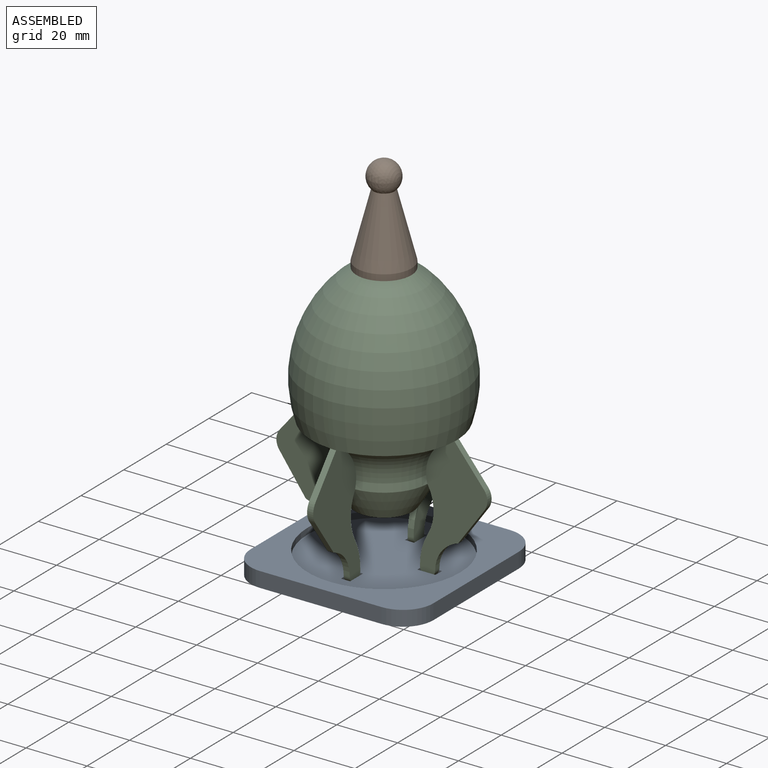
[diagram: assembled view]
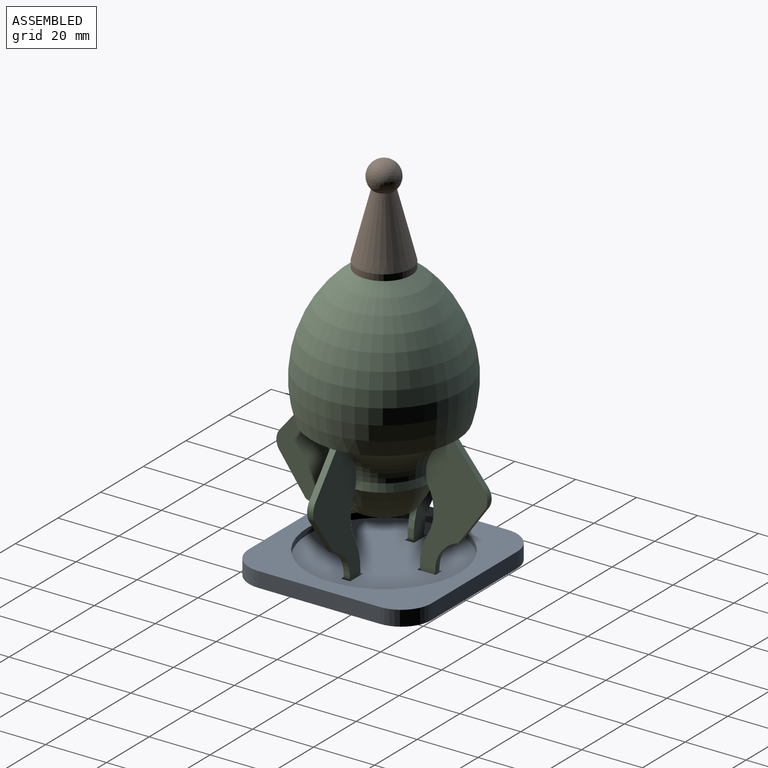
[diagram: assembled view, second angle]
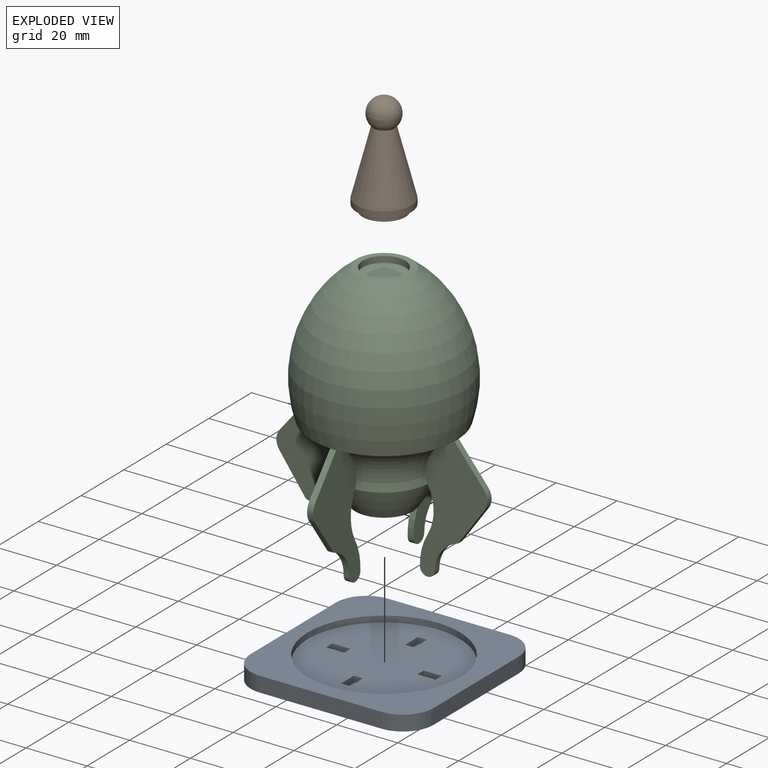
[diagram: exploded view]
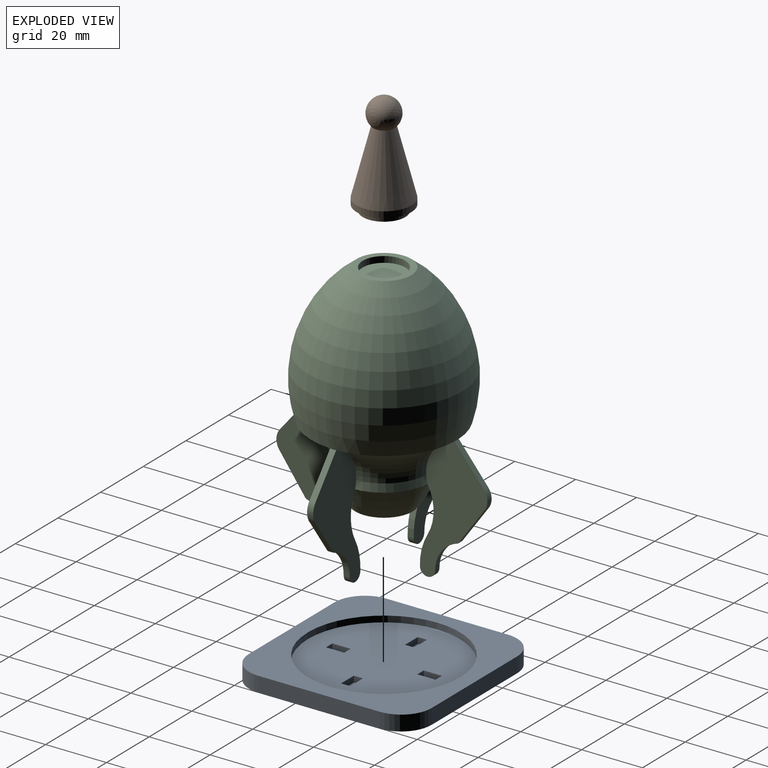
[diagram: exploded view, second angle]
ASSEMBLY  parts=3 mates=2
PART A: 32 faces, bbox 60x60x5 mm
  f0: plane 50x50mm, normal (0,0,1), area 1891.5mm2, adj f7,f12,f13,f14,f15,f17,f18,f19
  f1: plane 40x5mm, normal (1,0,0), area 200mm2, adj f5,f6,f8,f11
  f2: plane 40x5mm, normal (0,1,0), area 200mm2, adj f5,f6,f8,f9
  f3: plane 40x5mm, normal (-1,0,0), area 200mm2, adj f5,f6,f9,f10
  f4: plane 40x5mm, normal (0,-1,0), area 200mm2, adj f5,f6,f10,f11
  f5: plane 60x60mm, normal (0,0,1), area 1550.7mm2, adj f1,f2,f3,f4,f7,f8,f9,f10
  f6: plane 60x60mm, normal (0,0,-1), area 3514.2mm2, adj f1,f2,f3,f4,f8,f9,f10,f11
  f7: cylinder r=25mm len=50mm, axis (0,0,1), area 314.2mm2, adj f0,f5
  f8: cylinder r=10mm len=10mm, axis (0,0,-1), area 78.5mm2, adj f1,f2,f5,f6
  f9: cylinder r=10mm len=10mm, axis (0,0,1), area 78.5mm2, adj f2,f3,f5,f6
  f10: cylinder r=10mm len=10mm, axis (0,0,-1), area 78.5mm2, adj f3,f4,f5,f6
  f11: cylinder r=10mm len=10mm, axis (0,0,1), area 78.5mm2, adj f1,f4,f5,f6
  f12: plane 3x2mm, normal (0,1,0), area 6mm2, adj f0,f13,f15,f16
  f13: plane 6x2mm, normal (-1,0,0), area 12mm2, adj f0,f12,f14,f16
  f14: plane 3x2mm, normal (0,-1,0), area 6mm2, adj f0,f13,f15,f16
  f15: plane 6x2mm, normal (1,0,0), area 12mm2, adj f0,f12,f14,f16
  f16: plane 6x3mm, normal (0,0,1), area 18mm2, adj f12,f13,f14,f15
  f17: plane 3x2mm, normal (1,0,0), area 6mm2, adj f0,f18,f20,f21
  f18: plane 6x2mm, normal (0,1,0), area 12mm2, adj f0,f17,f19,f21
  f19: plane 3x2mm, normal (-1,0,0), area 6mm2, adj f0,f18,f20,f21
  f20: plane 6x2mm, normal (0,-1,0), area 12mm2, adj f0,f17,f19,f21
  f21: plane 6x3mm, normal (0,0,1), area 18mm2, adj f17,f18,f19,f20
  f22: plane 6x2mm, normal (1,0,0), area 12mm2, adj f0,f23,f25,f26
  f23: plane 3x2mm, normal (0,1,0), area 6mm2, adj f0,f22,f24,f26
  f24: plane 6x2mm, normal (-1,0,0), area 12mm2, adj f0,f23,f25,f26
  f25: plane 3x2mm, normal (0,-1,0), area 6mm2, adj f0,f22,f24,f26
  f26: plane 6x3mm, normal (0,0,1), area 18mm2, adj f22,f23,f24,f25
  f27: plane 3x2mm, normal (-1,0,0), area 6mm2, adj f0,f28,f30,f31
  f28: plane 6x2mm, normal (0,-1,0), area 12mm2, adj f0,f27,f29,f31
  f29: plane 3x2mm, normal (1,0,0), area 6mm2, adj f0,f28,f30,f31
  f30: plane 6x2mm, normal (0,1,0), area 12mm2, adj f0,f27,f29,f31
  f31: plane 6x3mm, normal (0,0,1), area 18mm2, adj f27,f28,f29,f30
PART B: 6 faces, bbox 18x18x34 mm
  f0: cylinder r=7mm len=14mm, axis (0,0,-1), area 88mm2, adj f1,f3
  f1: plane 14x14mm, normal (0,0,-1), area 153.9mm2, adj f0
  f2: cylinder r=9mm len=18mm, axis (0,0,-1), area 113.1mm2, adj f3,f4
  f3: plane 18x18mm, normal (0,0,-1), area 100.5mm2, adj f0,f2
  f4: cone r=9mm half-angle=14.6deg, axis (0,0,-1), area 863.3mm2, adj f2,f5
  f5: sphere r=5mm, area 271mm2, adj f4
PART C: 58 faces, bbox 69.3x69.3x87.5 mm
  f0: plane 2x0.02mm, normal (0,-0.86,-0.51), area 0mm2, adj f46,f47,f48,f49,f50
  f1: torus R=26.54mm, axis (0,0,-1), area 491.5mm2, adj f7,f9,f14,f48
  f2: plane 2x0.02mm, normal (0.86,0,-0.51), area 0mm2, adj f35,f36,f37,f38,f39
  f3: torus R=26.54mm, axis (0,0,-1), area 491.5mm2, adj f7,f9,f37,f47
  f4: plane 2x0.02mm, normal (0,0.86,-0.51), area 0mm2, adj f24,f25,f26,f27,f28
  f5: torus R=26.54mm, axis (0,0,-1), area 491.5mm2, adj f7,f9,f26,f36
  f6: plane 2x0.02mm, normal (-0.86,0,-0.51), area 0mm2, adj f13,f14,f15,f16,f17
  f7: revolved ~29.93x29.93mm, area 894.1mm2, adj f1,f3,f5,f8,f19,f30,f41,f52
  f8: torus R=26.54mm, axis (0,0,-1), area 491.5mm2, adj f7,f9,f15,f25
  f9: revolved ~51.69x51.69mm, area 6797.7mm2, adj f1,f3,f5,f8,f10,f13,f16,f24
  f10: plane 18x18mm, normal (0,0,1), area 100.5mm2, adj f9,f11
  f11: cylinder r=7mm len=14mm, axis (0,0,-1), area 88mm2, adj f10,f12
  f12: plane 14x14mm, normal (0,0,1), area 153.9mm2, adj f11
  f13: plane 1x0.02mm, normal (0,0,1), area 0mm2, adj f6,f9,f14
  f14: plane 42.5x22.15mm, normal (0,-1,0), area 483.8mm2, adj f1,f6,f13,f17,f18,f19,f20,f21
  f15: plane 42.5x22.15mm, normal (0,1,0), area 483.8mm2, adj f6,f8,f16,f17,f18,f19,f20,f21
  f16: plane 1x0.02mm, normal (0,0,1), area 0mm2, adj f6,f9,f15
  f17: plane 11.74x9.64mm, normal (-0.77,0,0.63), area 30.4mm2, adj f6,f14,f15,f20
  f18: cylinder r=18.89mm len=10mm, axis (0,1,0), area 20.9mm2, adj f14,f15,f19,f23
  f19: cylinder r=15mm len=15mm, axis (0,1,0), area 31.4mm2, adj f7,f14,f15,f18
  f20: cylinder r=5mm len=6.08mm, axis (0,1,0), area 13.1mm2, adj f14,f15,f17,f21
  f21: plane 12.16x8.71mm, normal (-0.81,0,-0.58), area 29.9mm2, adj f14,f15,f20,f22
  f22: cylinder r=10.42mm len=10mm, axis (0,1,0), area 26.8mm2, adj f14,f15,f21,f23
  f23: cylinder r=2.5mm len=5mm, axis (0,1,0), area 15.7mm2, adj f14,f15,f18,f22
  f24: plane 1x0.02mm, normal (0,0,1), area 0mm2, adj f4,f9,f26
  f25: plane 42.5x22.15mm, normal (-1,0,0), area 483.8mm2, adj f4,f8,f27,f28,f29,f30,f31,f32
  f26: plane 42.5x22.15mm, normal (1,0,0), area 483.8mm2, adj f4,f5,f24,f28,f29,f30,f31,f32
  f27: plane 1x0.02mm, normal (0,0,1), area 0mm2, adj f4,f9,f25
  f28: plane 11.74x9.64mm, normal (0,0.77,0.63), area 30.4mm2, adj f4,f25,f26,f31
  f29: cylinder r=18.89mm len=10mm, axis (1,0,0), area 20.9mm2, adj f25,f26,f30,f34
  f30: cylinder r=15mm len=15mm, axis (1,0,0), area 31.4mm2, adj f7,f25,f26,f29
  f31: cylinder r=5mm len=6.08mm, axis (1,0,0), area 13.1mm2, adj f25,f26,f28,f32
  f32: plane 12.16x8.71mm, normal (0,0.81,-0.58), area 29.9mm2, adj f25,f26,f31,f33
  f33: cylinder r=10.42mm len=10mm, axis (1,0,0), area 26.8mm2, adj f25,f26,f32,f34
  f34: cylinder r=2.5mm len=5mm, axis (1,0,0), area 15.7mm2, adj f25,f26,f29,f33
  f35: plane 1x0.02mm, normal (0,0,1), area 0mm2, adj f2,f9,f37
  f36: plane 42.5x22.15mm, normal (0,1,0), area 483.8mm2, adj f2,f5,f38,f39,f40,f41,f42,f43
  f37: plane 42.5x22.15mm, normal (0,-1,0), area 483.8mm2, adj f2,f3,f35,f39,f40,f41,f42,f43
  f38: plane 1x0.02mm, normal (0,0,1), area 0mm2, adj f2,f9,f36
  f39: plane 11.74x9.64mm, normal (0.77,0,0.63), area 30.4mm2, adj f2,f36,f37,f42
  f40: cylinder r=18.89mm len=10mm, axis (0,-1,0), area 20.9mm2, adj f36,f37,f41,f45
  f41: cylinder r=15mm len=15mm, axis (0,-1,0), area 31.4mm2, adj f7,f36,f37,f40
  f42: cylinder r=5mm len=6.08mm, axis (0,-1,0), area 13.1mm2, adj f36,f37,f39,f43
  f43: plane 12.16x8.71mm, normal (0.81,0,-0.58), area 29.9mm2, adj f36,f37,f42,f44
  f44: cylinder r=10.42mm len=10mm, axis (0,-1,0), area 26.8mm2, adj f36,f37,f43,f45
  f45: cylinder r=2.5mm len=5mm, axis (0,-1,0), area 15.7mm2, adj f36,f37,f40,f44
  f46: plane 1x0.02mm, normal (0,0,1), area 0mm2, adj f0,f9,f48
  f47: plane 42.5x22.15mm, normal (1,0,0), area 483.8mm2, adj f0,f3,f49,f50,f51,f52,f53,f54
  f48: plane 42.5x22.15mm, normal (-1,0,0), area 483.8mm2, adj f0,f1,f46,f50,f51,f52,f53,f54
  f49: plane 1x0.02mm, normal (0,0,1), area 0mm2, adj f0,f9,f47
  f50: plane 11.74x9.64mm, normal (0,-0.77,0.63), area 30.4mm2, adj f0,f47,f48,f53
  f51: cylinder r=18.89mm len=10mm, axis (-1,0,0), area 20.9mm2, adj f47,f48,f52,f56
  f52: cylinder r=15mm len=15mm, axis (-1,0,0), area 31.4mm2, adj f7,f47,f48,f51
  f53: cylinder r=5mm len=6.08mm, axis (-1,0,0), area 13.1mm2, adj f47,f48,f50,f54
  f54: plane 12.16x8.71mm, normal (0,-0.81,-0.58), area 29.9mm2, adj f47,f48,f53,f55
  f55: cylinder r=10.42mm len=10mm, axis (-1,0,0), area 26.8mm2, adj f47,f48,f54,f56
  f56: cylinder r=2.5mm len=5mm, axis (-1,0,0), area 15.7mm2, adj f47,f48,f51,f55
  f57: plane 18.93x18.93mm, normal (0,0,-1), area 281.6mm2, adj f7
PLACE A t=(-26.07,30.86,-35.03)mm
PLACE B t=(-26.07,30.86,51.97)mm
PLACE C t=(-26.07,30.86,-26.03)mm
MATE fastened C.f1 <-> B.f0  axis (0,0,1) through (-26.07,30.86,51.97)mm
MATE fastened A.f7 <-> C.f1  axis (0,0,1) through (-26.07,30.86,-32.03)mm
